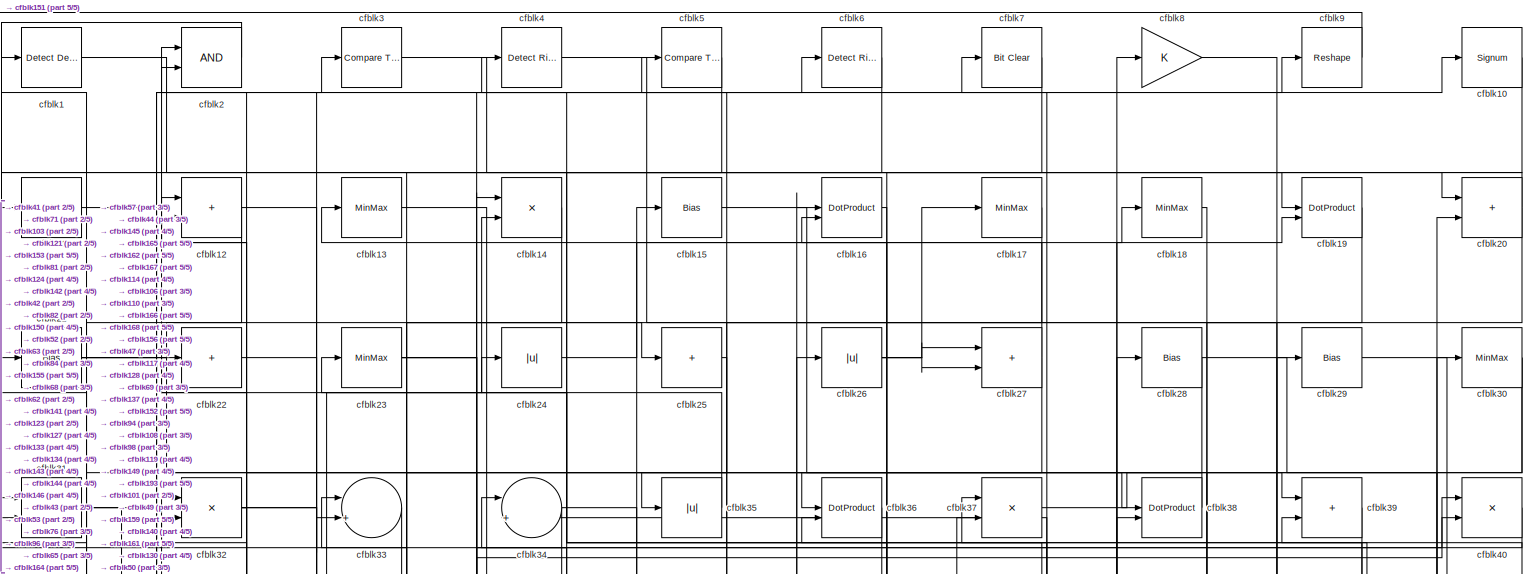
[diagram: root canvas - part 1/5, full width, top band]
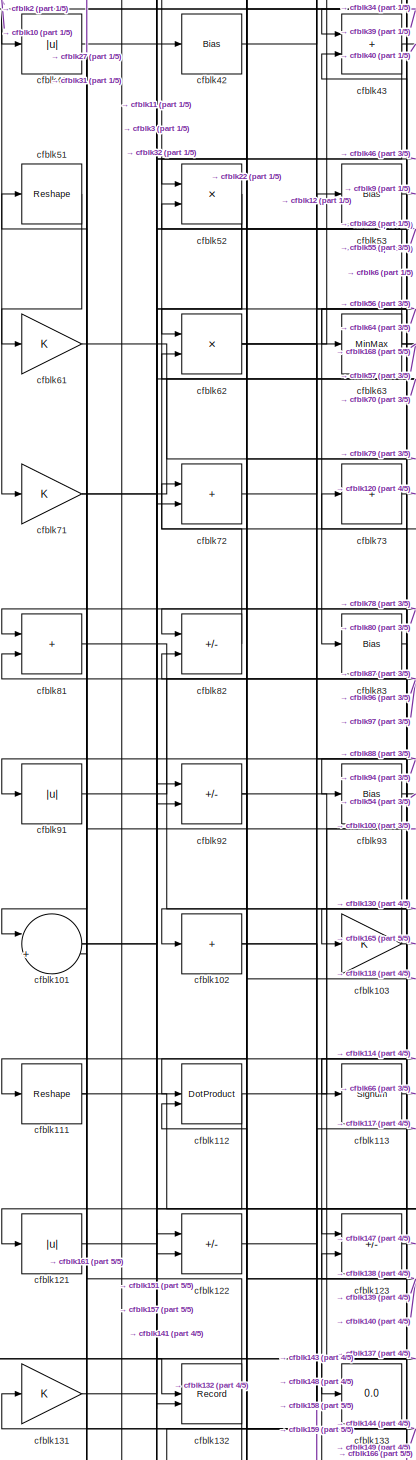
[diagram: root canvas - part 2/5, middle left region]
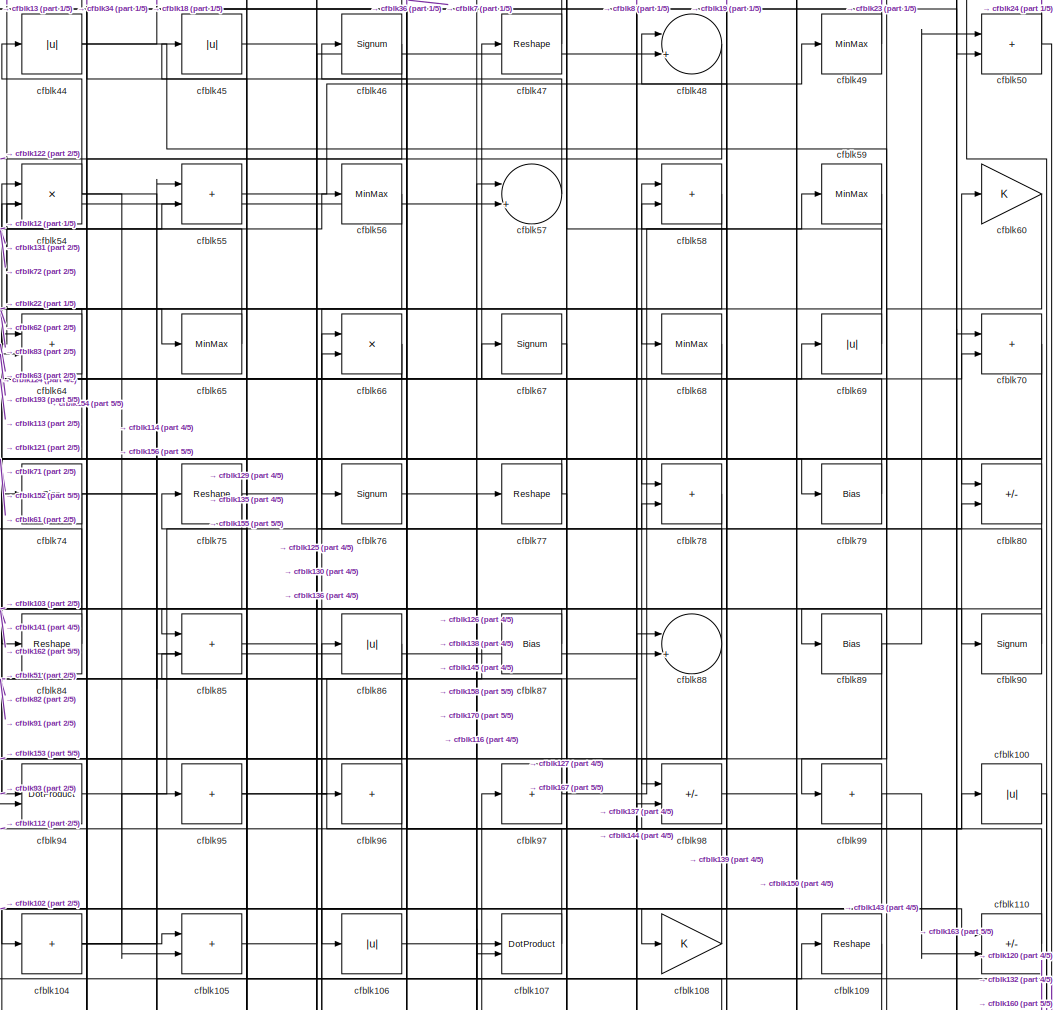
[diagram: root canvas - part 3/5, central region]
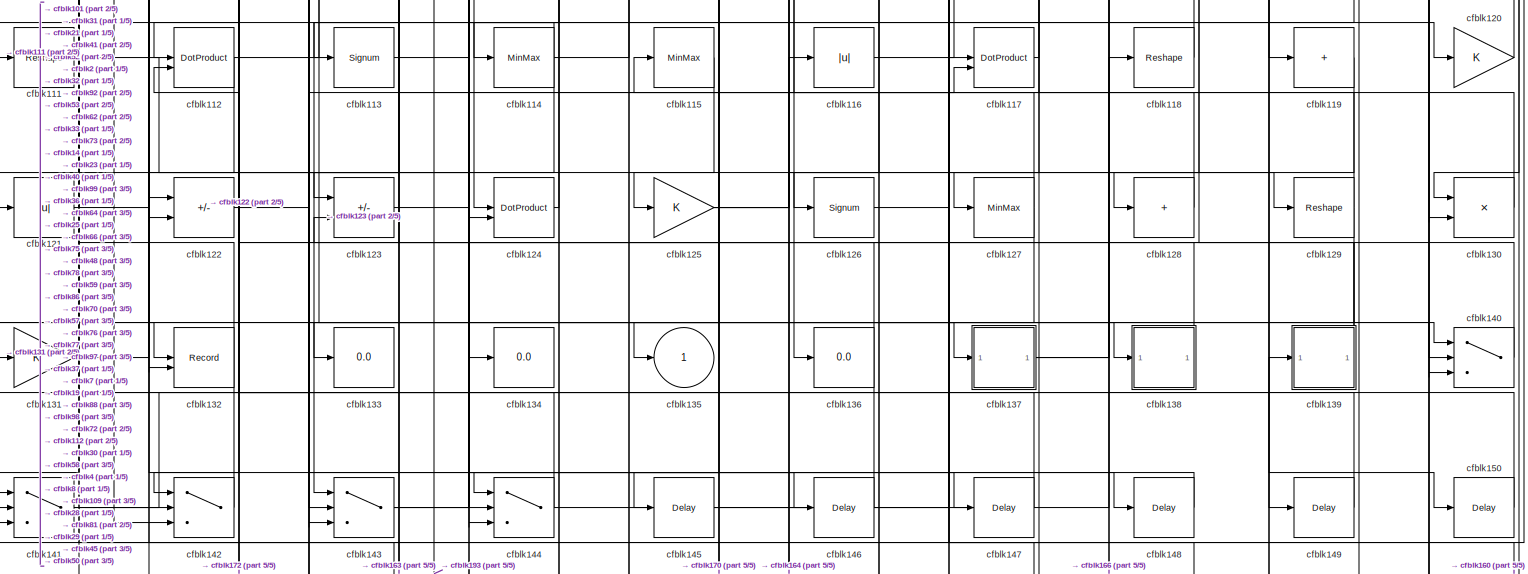
[diagram: root canvas - part 4/5, full width, middle band]
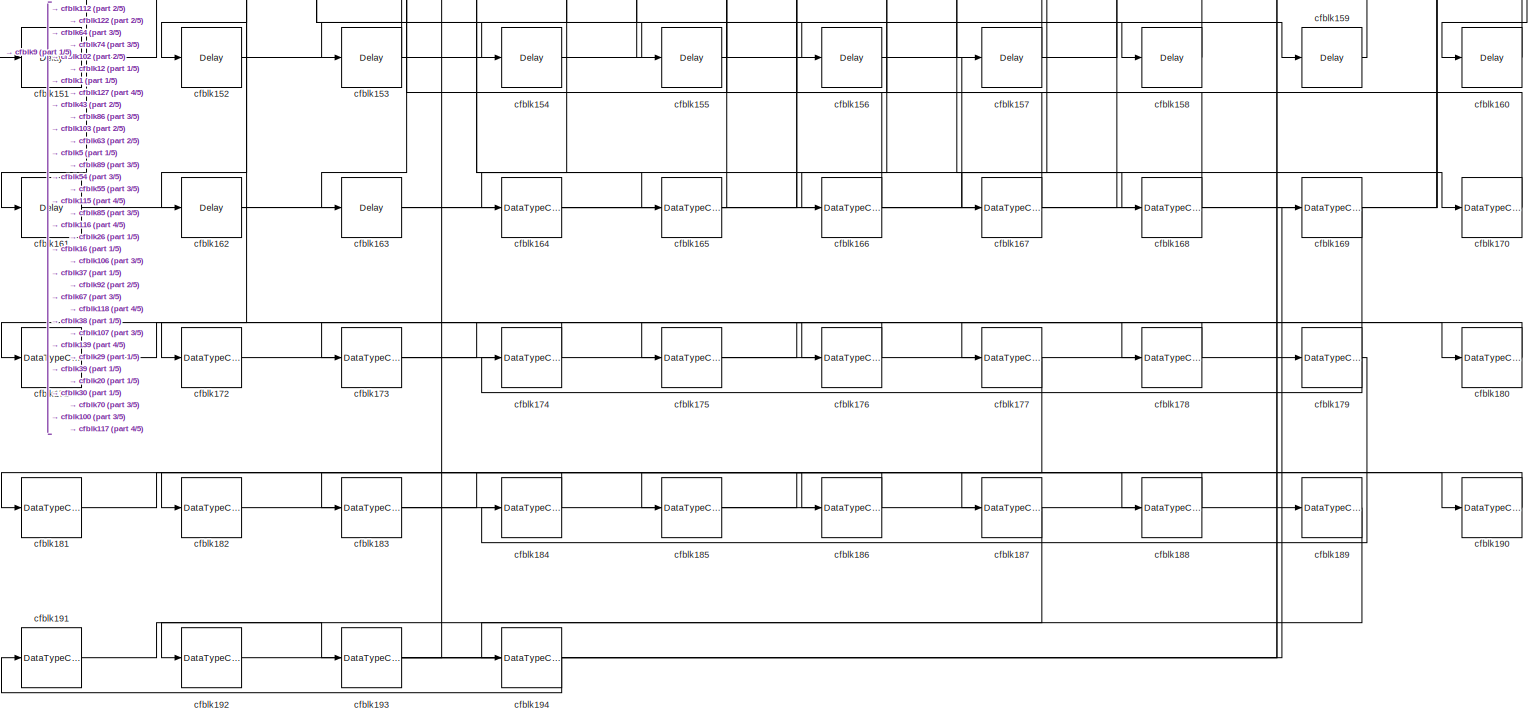
[diagram: root canvas - part 5/5, full width, bottom band]
MODEL slx_6dfb4a7e7140
KIND model
CONFIG AbsTol = auto
CONFIG EnableMultiTasking = off
CONFIG FixedStep = auto
CONFIG MaxStep = auto
CONFIG MinStep = auto
CONFIG RelTol = 1e-3
CONFIG SampleTimeConstraint = Unconstrained
CONFIG SolverName = VariableStepAuto
CONFIG StartTime = 0.0
CONFIG StopTime = 10.0
BLOCK [Reference] cfblk1  REF=simulink/Logic and Bit
Operations/Detect
Decrease
  LibrarySourceBlock = hdlsllib/Logic and Bit\nOperations/Detect\nDecrease
  SourceBlock = simulink/Logic and Bit\nOperations/Detect\nDecrease
  SourceType = Detect Decrease
BLOCK [Signum] cfblk10
BLOCK [Abs] cfblk100
  SaturateOnIntegerOverflow = off
BLOCK [Sum] cfblk101
  Inputs = |++
BLOCK [Sum] cfblk102
  IconShape = rectangular
  Inputs = +
BLOCK [Gain] cfblk103
BLOCK [Sum] cfblk104
  IconShape = rectangular
  Inputs = +
BLOCK [Sum] cfblk105
  IconShape = rectangular
BLOCK [Abs] cfblk106
  SaturateOnIntegerOverflow = off
BLOCK [DotProduct] cfblk107
  OutDataTypeStr = Inherit: Inherit via internal rule
BLOCK [Gain] cfblk108
BLOCK [Reshape] cfblk109
BLOCK [Sum] cfblk11
  IconShape = rectangular
  Inputs = +
BLOCK [Sum] cfblk110
  IconShape = rectangular
  Inputs = +-
BLOCK [Reshape] cfblk111
BLOCK [DotProduct] cfblk112
  OutDataTypeStr = Inherit: Inherit via internal rule
BLOCK [Signum] cfblk113
BLOCK [MinMax] cfblk114
BLOCK [MinMax] cfblk115
BLOCK [Abs] cfblk116
  SaturateOnIntegerOverflow = off
BLOCK [DotProduct] cfblk117
  OutDataTypeStr = Inherit: Inherit via internal rule
BLOCK [Reshape] cfblk118
BLOCK [Sum] cfblk119
  IconShape = rectangular
  Inputs = +
BLOCK [Sum] cfblk12
  IconShape = rectangular
BLOCK [Gain] cfblk120
BLOCK [Abs] cfblk121
  SaturateOnIntegerOverflow = off
BLOCK [Sum] cfblk122
  IconShape = rectangular
  Inputs = +-
BLOCK [Sum] cfblk123
  IconShape = rectangular
  Inputs = +-
BLOCK [DotProduct] cfblk124
  OutDataTypeStr = Inherit: Inherit via internal rule
BLOCK [Gain] cfblk125
BLOCK [Signum] cfblk126
BLOCK [MinMax] cfblk127
BLOCK [Sum] cfblk128
  IconShape = rectangular
  Inputs = +
BLOCK [Reshape] cfblk129
BLOCK [MinMax] cfblk13
BLOCK [Product] cfblk130
  Inputs = */
  RndMeth = Zero
  SaturateOnIntegerOverflow = on
BLOCK [Gain] cfblk131
BLOCK [Record] cfblk132
  CompatibilityTag = XY
  FileSettingsInternal = {"entries":[{"content":{"excelSettings":{"content":{},"type":"Streamout.ExcelSettings"}},"type":"Streamout.FileSettingStorage","uuid":""}],"packageUris":["http:\/\/schema.mathworks.com\/mf0\/streamout_blocks\/R2020a"],"version":"1.0"}
  Layout = [1 1]
  SignalsInternal = {"entries":[{"content":{"signals":[{"content":{"blockPath":[],"dimensions":[1],"domain":"","lineColor":"#a2142f","plots":[1],"port":1,"signalID":4319,"signalName":"XY Graph:1"},"type":"RecordBlkView.Signal","uuid":""},{"content":{"blockPath":[],"dimensions":[1],"domain":"","lineColor":"#139fff","plots":[1],"port":2,"signalID":4322,"signalName":"XY Graph:2"},"type":"RecordBlkView.Signal","uuid":""}...<+146ch>
  VisualizationBindings = {"xyplotplugin":{"info":[{"series":[{"bindingParametersList":[{"parameter":"X-Axis","signalID":4319,"signalName":"XY Graph:1"},{"parameter":"Y-Axis","signalID":4322,"signalName":"XY Graph:2"}],"seriesID":21637}],"subplotID":1}]}}
  st = -1
BLOCK [Display] cfblk133
  Decimation = 1
BLOCK [Display] cfblk134
  Decimation = 1
BLOCK [Outport] cfblk135
  VectorParamsAs1DForOutWhenUnconnected = off
BLOCK [Display] cfblk136
  Decimation = 1
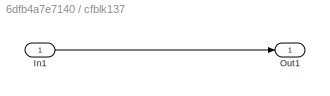
BLOCK [SubSystem] cfblk137
  LibrarySourceBlock = hdlsllib/Ports &\nSubsystems/Subsystem
BLOCK [Inport] cfblk137/In1
BLOCK [Outport] cfblk137/Out1
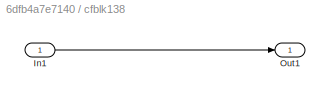
BLOCK [SubSystem] cfblk138
  LibrarySourceBlock = hdlsllib/Ports &\nSubsystems/Subsystem
BLOCK [Inport] cfblk138/In1
BLOCK [Outport] cfblk138/Out1
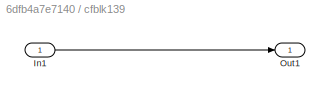
BLOCK [SubSystem] cfblk139
  LibrarySourceBlock = hdlsllib/Ports &\nSubsystems/Subsystem
BLOCK [Inport] cfblk139/In1
BLOCK [Outport] cfblk139/Out1
BLOCK [Product] cfblk14
  Inputs = */
  RndMeth = Zero
  SaturateOnIntegerOverflow = on
BLOCK [Switch] cfblk140
  InputSameDT = off
  SaturateOnIntegerOverflow = off
BLOCK [Switch] cfblk141
  InputSameDT = off
  SaturateOnIntegerOverflow = off
BLOCK [Switch] cfblk142
  InputSameDT = off
  SaturateOnIntegerOverflow = off
BLOCK [Switch] cfblk143
  InputSameDT = off
  SaturateOnIntegerOverflow = off
BLOCK [Switch] cfblk144
  InputSameDT = off
  SaturateOnIntegerOverflow = off
BLOCK [Delay] cfblk145
  InputPortMap = u0
  SampleTime = 1
BLOCK [Delay] cfblk146
  InputPortMap = u0
  SampleTime = 1
BLOCK [Delay] cfblk147
  InputPortMap = u0
  SampleTime = 1
BLOCK [Delay] cfblk148
  InputPortMap = u0
  SampleTime = 1
BLOCK [Delay] cfblk149
  InputPortMap = u0
  SampleTime = 1
BLOCK [Bias] cfblk15
  Bias = 0.0
  SaturateOnIntegerOverflow = off
BLOCK [Delay] cfblk150
  InputPortMap = u0
  SampleTime = 1
BLOCK [Delay] cfblk151
  InputPortMap = u0
  SampleTime = 1
BLOCK [Delay] cfblk152
  InputPortMap = u0
  SampleTime = 1
BLOCK [Delay] cfblk153
  InputPortMap = u0
  SampleTime = 1
BLOCK [Delay] cfblk154
  InputPortMap = u0
  SampleTime = 1
BLOCK [Delay] cfblk155
  InputPortMap = u0
  SampleTime = 1
BLOCK [Delay] cfblk156
  InputPortMap = u0
  SampleTime = 1
BLOCK [Delay] cfblk157
  InputPortMap = u0
  SampleTime = 1
BLOCK [Delay] cfblk158
  InputPortMap = u0
  SampleTime = 1
BLOCK [Delay] cfblk159
  InputPortMap = u0
  SampleTime = 1
BLOCK [DotProduct] cfblk16
  OutDataTypeStr = Inherit: Inherit via internal rule
BLOCK [Delay] cfblk160
  InputPortMap = u0
  SampleTime = 1
BLOCK [Delay] cfblk161
  InputPortMap = u0
  SampleTime = 1
BLOCK [Delay] cfblk162
  InputPortMap = u0
  SampleTime = 1
BLOCK [Delay] cfblk163
  InputPortMap = u0
  SampleTime = 1
BLOCK [DataTypeConversion] cfblk164
  RndMeth = Floor
  SaturateOnIntegerOverflow = off
BLOCK [DataTypeConversion] cfblk165
  OutDataTypeStr = uint8
  RndMeth = Floor
  SaturateOnIntegerOverflow = off
BLOCK [DataTypeConversion] cfblk166
  RndMeth = Floor
  SaturateOnIntegerOverflow = off
BLOCK [DataTypeConversion] cfblk167
  OutDataTypeStr = uint8
  RndMeth = Floor
  SaturateOnIntegerOverflow = off
BLOCK [DataTypeConversion] cfblk168
  OutDataTypeStr = uint8
  RndMeth = Floor
  SaturateOnIntegerOverflow = off
BLOCK [DataTypeConversion] cfblk169
  RndMeth = Floor
  SaturateOnIntegerOverflow = off
BLOCK [MinMax] cfblk17
BLOCK [DataTypeConversion] cfblk170
  OutDataTypeStr = uint8
  RndMeth = Floor
  SaturateOnIntegerOverflow = off
BLOCK [DataTypeConversion] cfblk171
  RndMeth = Floor
  SaturateOnIntegerOverflow = off
BLOCK [DataTypeConversion] cfblk172
  OutDataTypeStr = uint8
  RndMeth = Floor
  SaturateOnIntegerOverflow = off
BLOCK [DataTypeConversion] cfblk173
  RndMeth = Floor
  SaturateOnIntegerOverflow = off
BLOCK [DataTypeConversion] cfblk174
  OutDataTypeStr = uint8
  RndMeth = Floor
  SaturateOnIntegerOverflow = off
BLOCK [DataTypeConversion] cfblk175
  RndMeth = Floor
  SaturateOnIntegerOverflow = off
BLOCK [DataTypeConversion] cfblk176
  OutDataTypeStr = uint8
  RndMeth = Floor
  SaturateOnIntegerOverflow = off
BLOCK [DataTypeConversion] cfblk177
  RndMeth = Floor
  SaturateOnIntegerOverflow = off
BLOCK [DataTypeConversion] cfblk178
  OutDataTypeStr = uint8
  RndMeth = Floor
  SaturateOnIntegerOverflow = off
BLOCK [DataTypeConversion] cfblk179
  RndMeth = Floor
  SaturateOnIntegerOverflow = off
BLOCK [MinMax] cfblk18
BLOCK [DataTypeConversion] cfblk180
  OutDataTypeStr = uint8
  RndMeth = Floor
  SaturateOnIntegerOverflow = off
BLOCK [DataTypeConversion] cfblk181
  RndMeth = Floor
  SaturateOnIntegerOverflow = off
BLOCK [DataTypeConversion] cfblk182
  OutDataTypeStr = uint8
  RndMeth = Floor
  SaturateOnIntegerOverflow = off
BLOCK [DataTypeConversion] cfblk183
  RndMeth = Floor
  SaturateOnIntegerOverflow = off
BLOCK [DataTypeConversion] cfblk184
  OutDataTypeStr = uint8
  RndMeth = Floor
  SaturateOnIntegerOverflow = off
BLOCK [DataTypeConversion] cfblk185
  RndMeth = Floor
  SaturateOnIntegerOverflow = off
BLOCK [DataTypeConversion] cfblk186
  OutDataTypeStr = uint8
  RndMeth = Floor
  SaturateOnIntegerOverflow = off
BLOCK [DataTypeConversion] cfblk187
  RndMeth = Floor
  SaturateOnIntegerOverflow = off
BLOCK [DataTypeConversion] cfblk188
  OutDataTypeStr = uint8
  RndMeth = Floor
  SaturateOnIntegerOverflow = off
BLOCK [DataTypeConversion] cfblk189
  RndMeth = Floor
  SaturateOnIntegerOverflow = off
BLOCK [DotProduct] cfblk19
  OutDataTypeStr = Inherit: Inherit via internal rule
BLOCK [DataTypeConversion] cfblk190
  OutDataTypeStr = uint8
  RndMeth = Floor
  SaturateOnIntegerOverflow = off
BLOCK [DataTypeConversion] cfblk191
  RndMeth = Floor
  SaturateOnIntegerOverflow = off
BLOCK [DataTypeConversion] cfblk192
  OutDataTypeStr = uint8
  RndMeth = Floor
  SaturateOnIntegerOverflow = off
BLOCK [DataTypeConversion] cfblk193
  RndMeth = Floor
  SaturateOnIntegerOverflow = off
BLOCK [DataTypeConversion] cfblk194
  OutDataTypeStr = uint8
  RndMeth = Floor
  SaturateOnIntegerOverflow = off
BLOCK [Logic] cfblk2
  AllPortsSameDT = off
  OutDataTypeStr = boolean
BLOCK [Sum] cfblk20
  IconShape = rectangular
BLOCK [Bias] cfblk21
  Bias = 0.0
  SaturateOnIntegerOverflow = off
BLOCK [Sum] cfblk22
  IconShape = rectangular
  Inputs = +
BLOCK [MinMax] cfblk23
BLOCK [Abs] cfblk24
  SaturateOnIntegerOverflow = off
BLOCK [Sum] cfblk25
  IconShape = rectangular
  Inputs = +
BLOCK [Abs] cfblk26
  SaturateOnIntegerOverflow = off
BLOCK [Sum] cfblk27
  IconShape = rectangular
BLOCK [Bias] cfblk28
  Bias = 0.0
  SaturateOnIntegerOverflow = off
BLOCK [Bias] cfblk29
  Bias = 0.0
  SaturateOnIntegerOverflow = off
BLOCK [Reference] cfblk3  REF=hdlsllib/Logic and Bit
Operations/Compare
To Zero
  SourceBlock = hdlsllib/Logic and Bit\nOperations/Compare\nTo Zero
  SourceType = Compare To Zero
BLOCK [MinMax] cfblk30
BLOCK [Product] cfblk31
  Inputs = */
  RndMeth = Zero
  SaturateOnIntegerOverflow = on
BLOCK [Product] cfblk32
  Inputs = */
  RndMeth = Zero
  SaturateOnIntegerOverflow = on
BLOCK [Sum] cfblk33
  Inputs = |++
BLOCK [Sum] cfblk34
  Inputs = |++
BLOCK [Abs] cfblk35
  SaturateOnIntegerOverflow = off
BLOCK [DotProduct] cfblk36
  OutDataTypeStr = Inherit: Inherit via internal rule
BLOCK [Product] cfblk37
  Inputs = */
  RndMeth = Zero
  SaturateOnIntegerOverflow = on
BLOCK [DotProduct] cfblk38
  OutDataTypeStr = Inherit: Inherit via internal rule
BLOCK [Sum] cfblk39
  IconShape = rectangular
BLOCK [Reference] cfblk4  REF=hdlsllib/Logic and Bit
Operations/Detect Rise
Positive
  SourceBlock = hdlsllib/Logic and Bit\nOperations/Detect Rise\nPositive
  SourceType = Detect Rise Positive
BLOCK [Product] cfblk40
  Inputs = */
  RndMeth = Zero
  SaturateOnIntegerOverflow = on
BLOCK [Abs] cfblk41
  SaturateOnIntegerOverflow = off
BLOCK [Bias] cfblk42
  Bias = 0.0
  SaturateOnIntegerOverflow = off
BLOCK [Sum] cfblk43
  IconShape = rectangular
BLOCK [Abs] cfblk44
  SaturateOnIntegerOverflow = off
BLOCK [Abs] cfblk45
  SaturateOnIntegerOverflow = off
BLOCK [Signum] cfblk46
BLOCK [Reshape] cfblk47
BLOCK [Sum] cfblk48
  Inputs = |++
BLOCK [MinMax] cfblk49
BLOCK [Reference] cfblk5  REF=hdlsllib/Logic and Bit
Operations/Compare
To Constant
  SourceBlock = hdlsllib/Logic and Bit\nOperations/Compare\nTo Constant
  SourceType = Compare To Constant
BLOCK [Sum] cfblk50
  IconShape = rectangular
BLOCK [Reshape] cfblk51
BLOCK [Product] cfblk52
  Inputs = */
  RndMeth = Zero
  SaturateOnIntegerOverflow = on
BLOCK [Bias] cfblk53
  Bias = 0.0
  SaturateOnIntegerOverflow = off
BLOCK [Product] cfblk54
  Inputs = */
  RndMeth = Zero
  SaturateOnIntegerOverflow = on
BLOCK [Sum] cfblk55
  IconShape = rectangular
BLOCK [MinMax] cfblk56
BLOCK [Sum] cfblk57
  Inputs = |++
BLOCK [Sum] cfblk58
  IconShape = rectangular
BLOCK [MinMax] cfblk59
BLOCK [Reference] cfblk6  REF=hdlsllib/Logic and Bit
Operations/Detect Rise
Nonnegative
  SourceBlock = hdlsllib/Logic and Bit\nOperations/Detect Rise\nNonnegative
  SourceType = Detect Rise Nonnegative
BLOCK [Gain] cfblk60
BLOCK [Gain] cfblk61
BLOCK [Product] cfblk62
  Inputs = */
  RndMeth = Zero
  SaturateOnIntegerOverflow = on
BLOCK [MinMax] cfblk63
BLOCK [Sum] cfblk64
  IconShape = rectangular
BLOCK [MinMax] cfblk65
BLOCK [Product] cfblk66
  Inputs = */
  RndMeth = Zero
  SaturateOnIntegerOverflow = on
BLOCK [Signum] cfblk67
BLOCK [MinMax] cfblk68
BLOCK [Abs] cfblk69
  SaturateOnIntegerOverflow = off
BLOCK [Reference] cfblk7  REF=simulink/Logic and Bit
Operations/Bit Clear
  LibrarySourceBlock = hdlsllib/Logic and Bit\nOperations/Bit Clear
  SourceBlock = simulink/Logic and Bit\nOperations/Bit Clear
  SourceType = Bit Clear
BLOCK [Sum] cfblk70
  IconShape = rectangular
BLOCK [Gain] cfblk71
BLOCK [Sum] cfblk72
  IconShape = rectangular
BLOCK [Sum] cfblk73
  IconShape = rectangular
  Inputs = +
BLOCK [Bias] cfblk74
  Bias = 0.0
  SaturateOnIntegerOverflow = off
BLOCK [Reshape] cfblk75
BLOCK [Signum] cfblk76
BLOCK [Reshape] cfblk77
BLOCK [Sum] cfblk78
  IconShape = rectangular
BLOCK [Bias] cfblk79
  Bias = 0.0
  SaturateOnIntegerOverflow = off
BLOCK [Gain] cfblk8
BLOCK [Sum] cfblk80
  IconShape = rectangular
  Inputs = +-
BLOCK [Sum] cfblk81
  IconShape = rectangular
BLOCK [Sum] cfblk82
  IconShape = rectangular
  Inputs = +-
BLOCK [Bias] cfblk83
  Bias = 0.0
  SaturateOnIntegerOverflow = off
BLOCK [Reshape] cfblk84
BLOCK [Sum] cfblk85
  IconShape = rectangular
BLOCK [Abs] cfblk86
  SaturateOnIntegerOverflow = off
BLOCK [Bias] cfblk87
  Bias = 0.0
  SaturateOnIntegerOverflow = off
BLOCK [Sum] cfblk88
  Inputs = |++
BLOCK [Bias] cfblk89
  Bias = 0.0
  SaturateOnIntegerOverflow = off
BLOCK [Reshape] cfblk9
BLOCK [Signum] cfblk90
BLOCK [Abs] cfblk91
  SaturateOnIntegerOverflow = off
BLOCK [Sum] cfblk92
  IconShape = rectangular
  Inputs = +-
BLOCK [Bias] cfblk93
  Bias = 0.0
  SaturateOnIntegerOverflow = off
BLOCK [DotProduct] cfblk94
  OutDataTypeStr = Inherit: Inherit via internal rule
BLOCK [Sum] cfblk95
  IconShape = rectangular
  Inputs = +
BLOCK [Sum] cfblk96
  IconShape = rectangular
  Inputs = +
BLOCK [Sum] cfblk97
  IconShape = rectangular
  Inputs = +
BLOCK [Sum] cfblk98
  IconShape = rectangular
  Inputs = +-
BLOCK [Sum] cfblk99
  IconShape = rectangular
  Inputs = +
LINE cfblk100:1 -> cfblk160:1
NET cfblk101:1 -> cfblk3:1, cfblk6:1
NET cfblk102:1 -> cfblk158:1, cfblk159:1
NET cfblk103:1 -> cfblk165:1, cfblk31:1
NET cfblk104:1 -> cfblk105:1, cfblk69:1, cfblk95:1
LINE cfblk105:1 -> cfblk110:1
LINE cfblk106:1 -> cfblk170:1
LINE cfblk107:1 -> cfblk46:1
LINE cfblk108:1 -> cfblk58:1
LINE cfblk109:1 -> cfblk143:1
LINE cfblk10:1 -> cfblk41:1
LINE cfblk110:1 -> cfblk36:2
NET cfblk111:1 -> cfblk143:2, cfblk81:2
NET cfblk112:1 -> cfblk100:1, cfblk161:1
LINE cfblk113:1 -> cfblk66:1
NET cfblk114:1 -> cfblk109:1, cfblk111:1, cfblk143:3
LINE cfblk115:1 -> cfblk172:1
LINE cfblk116:1 -> cfblk97:1
LINE cfblk117:1 -> cfblk37:1
LINE cfblk118:1 -> cfblk72:1
LINE cfblk119:1 -> cfblk125:1
LINE cfblk11:1 -> cfblk42:1
LINE cfblk120:1 -> cfblk45:1
LINE cfblk121:1 -> cfblk70:2
LINE cfblk122:1 -> cfblk117:2
LINE cfblk123:1 -> cfblk147:1
LINE cfblk124:1 -> cfblk64:1
NET cfblk125:1 -> cfblk129:1, cfblk48:2, cfblk78:2
LINE cfblk126:1 -> cfblk77:1
NET cfblk127:1 -> cfblk163:1, cfblk33:1
LINE cfblk128:1 -> cfblk7:1
NET cfblk129:1 -> cfblk141:3, cfblk75:1
NET cfblk12:1 -> cfblk155:1, cfblk81:1
LINE cfblk130:1 -> cfblk86:1
LINE cfblk131:1 -> cfblk56:1
LINE cfblk137/In1:1 -> cfblk137/Out1:1
NET cfblk137:1 -> cfblk19:2, cfblk88:1
LINE cfblk138/In1:1 -> cfblk138/Out1:1
LINE cfblk138:1 -> cfblk73:1
LINE cfblk139/In1:1 -> cfblk139/Out1:1
NET cfblk139:1 -> cfblk112:2, cfblk58:2
LINE cfblk13:1 -> cfblk65:1
LINE cfblk140:1 -> cfblk123:2
NET cfblk141:1 -> cfblk142:2, cfblk53:1
LINE cfblk142:1 -> cfblk21:1
NET cfblk143:1 -> cfblk14:1, cfblk40:2
NET cfblk144:1 -> cfblk131:1, cfblk98:2
LINE cfblk145:1 -> cfblk57:1
LINE cfblk146:1 -> cfblk2:2
LINE cfblk147:1 -> cfblk52:2
LINE cfblk148:1 -> cfblk144:1
LINE cfblk149:1 -> cfblk101:2
LINE cfblk14:1 -> cfblk123:1
LINE cfblk150:1 -> cfblk32:2
LINE cfblk151:1 -> cfblk122:1
LINE cfblk152:1 -> cfblk38:2
LINE cfblk153:1 -> cfblk1:1
LINE cfblk154:1 -> cfblk55:1
LINE cfblk155:1 -> cfblk85:2
LINE cfblk156:1 -> cfblk37:2
LINE cfblk157:1 -> cfblk92:1
LINE cfblk158:1 -> cfblk107:1
LINE cfblk159:1 -> cfblk39:2
LINE cfblk15:1 -> cfblk38:1
LINE cfblk160:1 -> cfblk117:1
LINE cfblk161:1 -> cfblk20:2
LINE cfblk162:1 -> cfblk26:1
LINE cfblk163:1 -> cfblk70:1
NET cfblk164:1 -> cfblk116:1, cfblk157:1
LINE cfblk165:1 -> cfblk5:1
NET cfblk166:1 -> cfblk118:1, cfblk30:1, cfblk43:2
LINE cfblk167:1 -> cfblk16:1
LINE cfblk168:1 -> cfblk16:2
LINE cfblk169:1 -> cfblk174:1
LINE cfblk16:1 -> cfblk166:1
LINE cfblk170:1 -> cfblk115:1
LINE cfblk171:1 -> cfblk176:1
LINE cfblk172:1 -> cfblk169:1
LINE cfblk173:1 -> cfblk178:1
LINE cfblk174:1 -> cfblk171:1
LINE cfblk175:1 -> cfblk180:1
LINE cfblk176:1 -> cfblk173:1
LINE cfblk177:1 -> cfblk182:1
LINE cfblk178:1 -> cfblk175:1
LINE cfblk179:1 -> cfblk184:1
LINE cfblk17:1 -> cfblk43:1
LINE cfblk180:1 -> cfblk177:1
LINE cfblk181:1 -> cfblk186:1
LINE cfblk182:1 -> cfblk179:1
LINE cfblk183:1 -> cfblk188:1
LINE cfblk184:1 -> cfblk181:1
LINE cfblk185:1 -> cfblk190:1
LINE cfblk186:1 -> cfblk183:1
LINE cfblk187:1 -> cfblk192:1
LINE cfblk188:1 -> cfblk185:1
LINE cfblk189:1 -> cfblk194:1
LINE cfblk18:1 -> cfblk108:1
LINE cfblk190:1 -> cfblk187:1
LINE cfblk191:1 -> cfblk193:1
LINE cfblk192:1 -> cfblk189:1
NET cfblk193:1 -> cfblk139:1, cfblk29:1, cfblk64:2
LINE cfblk194:1 -> cfblk191:1
LINE cfblk19:1 -> cfblk98:1
LINE cfblk1:1 -> cfblk20:1
NET cfblk20:1 -> cfblk11:1, cfblk35:1
NET cfblk21:1 -> cfblk144:3, cfblk146:1, cfblk25:1
LINE cfblk22:1 -> cfblk68:1
NET cfblk23:1 -> cfblk134:1, cfblk76:1, cfblk96:1
LINE cfblk24:1 -> cfblk15:1
LINE cfblk25:1 -> cfblk145:1
NET cfblk26:1 -> cfblk17:1, cfblk27:1, cfblk27:2
NET cfblk27:1 -> cfblk121:1, cfblk4:1
NET cfblk28:1 -> cfblk140:2, cfblk52:1
LINE cfblk29:1 -> cfblk130:1
LINE cfblk2:1 -> cfblk71:1
NET cfblk30:1 -> cfblk128:1, cfblk133:1
NET cfblk31:1 -> cfblk124:2, cfblk142:3
NET cfblk32:1 -> cfblk140:3, cfblk142:1, cfblk33:2
LINE cfblk33:1 -> cfblk141:2
NET cfblk34:1 -> cfblk50:2, cfblk82:1
LINE cfblk35:1 -> cfblk2:1
LINE cfblk36:1 -> cfblk114:1
LINE cfblk37:1 -> cfblk39:1
LINE cfblk38:1 -> cfblk36:1
LINE cfblk39:1 -> cfblk101:1
LINE cfblk3:1 -> cfblk19:1
LINE cfblk40:1 -> cfblk31:2
LINE cfblk41:1 -> cfblk140:1
LINE cfblk42:1 -> cfblk10:1
NET cfblk43:1 -> cfblk40:1, cfblk72:2
NET cfblk44:1 -> cfblk18:1, cfblk99:1
LINE cfblk45:1 -> cfblk90:1
LINE cfblk46:1 -> cfblk122:2
LINE cfblk47:1 -> cfblk13:1
LINE cfblk48:1 -> cfblk104:1
LINE cfblk49:1 -> cfblk23:1
LINE cfblk4:1 -> cfblk119:1
NET cfblk50:1 -> cfblk132:1, cfblk24:1
LINE cfblk51:1 -> cfblk61:1
NET cfblk52:1 -> cfblk132:2, cfblk92:2
LINE cfblk53:1 -> cfblk9:1
NET cfblk54:1 -> cfblk105:2, cfblk156:1, cfblk44:1
LINE cfblk55:1 -> cfblk49:1
LINE cfblk56:1 -> cfblk83:1
LINE cfblk57:1 -> cfblk34:1
LINE cfblk58:1 -> cfblk84:1
LINE cfblk59:1 -> cfblk136:1
LINE cfblk5:1 -> cfblk164:1
LINE cfblk60:1 -> cfblk89:1
LINE cfblk61:1 -> cfblk79:1
NET cfblk62:1 -> cfblk148:1, cfblk14:2, cfblk94:2
NET cfblk63:1 -> cfblk168:1, cfblk22:1, cfblk57:2
NET cfblk64:1 -> cfblk152:1, cfblk62:1
LINE cfblk65:1 -> cfblk12:1
NET cfblk66:1 -> cfblk135:1, cfblk62:2
LINE cfblk67:1 -> cfblk167:1
LINE cfblk68:1 -> cfblk94:1
LINE cfblk69:1 -> cfblk34:2
LINE cfblk6:1 -> cfblk63:1
NET cfblk70:1 -> cfblk126:1, cfblk144:2
NET cfblk71:1 -> cfblk28:1, cfblk54:2
LINE cfblk72:1 -> cfblk55:2
LINE cfblk73:1 -> cfblk120:1
NET cfblk74:1 -> cfblk162:1, cfblk80:1, cfblk88:2
NET cfblk75:1 -> cfblk141:1, cfblk67:1
LINE cfblk76:1 -> cfblk138:1
NET cfblk77:1 -> cfblk127:1, cfblk74:1
LINE cfblk78:1 -> cfblk103:1
LINE cfblk79:1 -> cfblk47:1
LINE cfblk7:1 -> cfblk106:1
NET cfblk80:1 -> cfblk78:1, cfblk93:1
LINE cfblk81:1 -> cfblk130:2
LINE cfblk82:1 -> cfblk32:1
LINE cfblk83:1 -> cfblk113:1
LINE cfblk84:1 -> cfblk12:2
LINE cfblk85:1 -> cfblk107:2
LINE cfblk86:1 -> cfblk153:1
LINE cfblk87:1 -> cfblk85:1
NET cfblk88:1 -> cfblk66:2, cfblk91:1
NET cfblk89:1 -> cfblk154:1, cfblk50:1
LINE cfblk8:1 -> cfblk149:1
LINE cfblk90:1 -> cfblk48:1
LINE cfblk91:1 -> cfblk87:1
NET cfblk92:1 -> cfblk112:1, cfblk137:1
LINE cfblk93:1 -> cfblk54:1
LINE cfblk94:1 -> cfblk8:1
NET cfblk95:1 -> cfblk60:1, cfblk80:2
NET cfblk96:1 -> cfblk102:1, cfblk82:2
NET cfblk97:1 -> cfblk51:1, cfblk59:1
LINE cfblk98:1 -> cfblk150:1
NET cfblk99:1 -> cfblk110:2, cfblk124:1
LINE cfblk9:1 -> cfblk151:1
note: NET lines group one-source signal fan-out (src -> all destinations, sorted); 1:1 wires keep LINE
